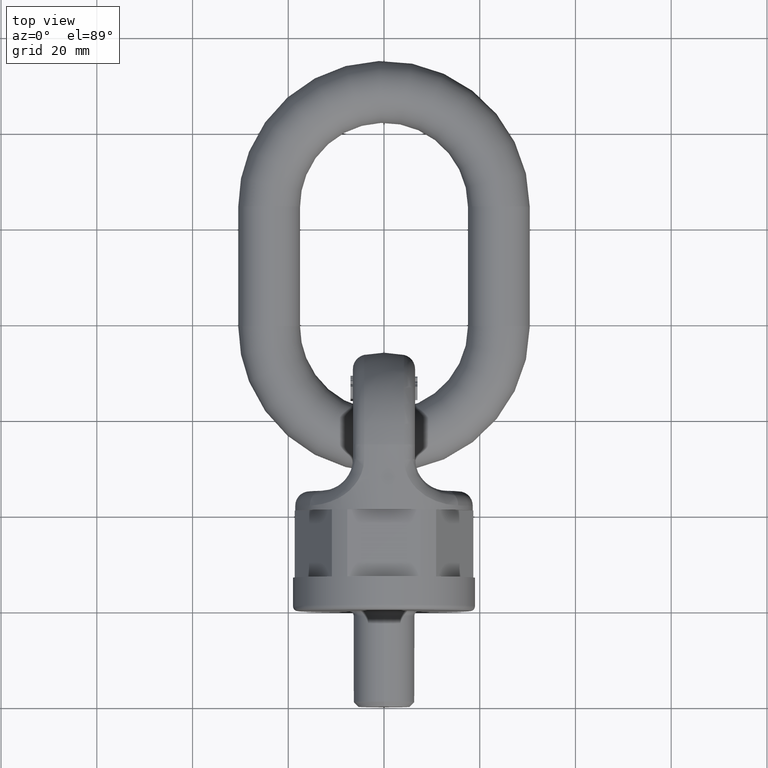
[diagram: clean part render]
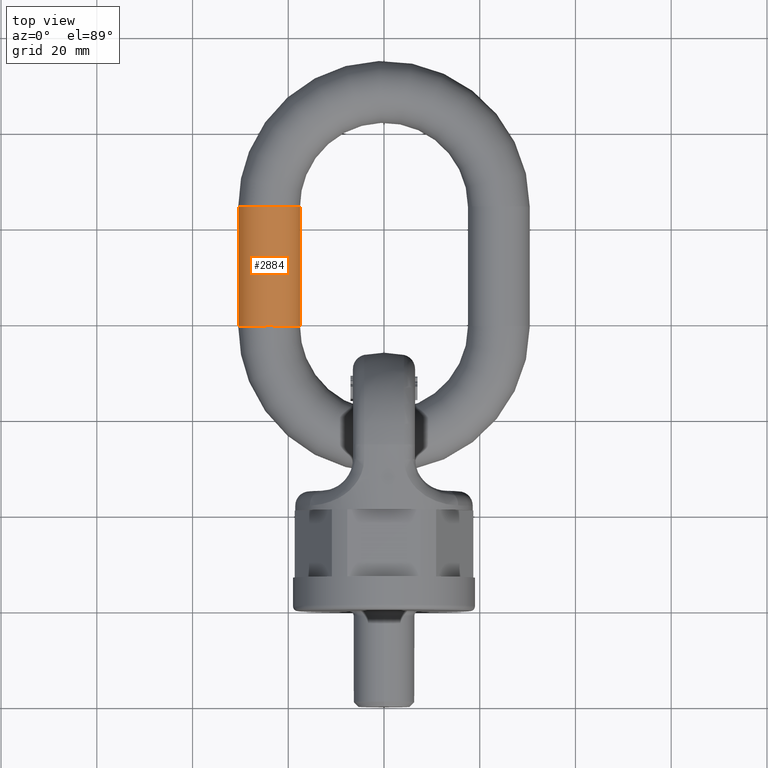
[diagram: same view with one face highlighted and labeled with its STEP entity id]
A machine part, top view. The second image highlights one B-rep face of the part: STEP entity #2884.
In plain terms, the highlighted cylindrical surface (bore or boss wall) has radius 6.5 mm, axis along (0, 1, 0).
Its self-contained STEP definition (entity closure, byte-faithful):
#2039=CYLINDRICAL_SURFACE('',#5803,6.5);
#2884=ADVANCED_FACE('',(#3057,#3058),#2039,.T.);
#3057=FACE_BOUND('',#3343,.T.);
#3058=FACE_BOUND('',#3344,.T.);
#3343=EDGE_LOOP('',(#4535));
#3344=EDGE_LOOP('',(#4536));
#4535=ORIENTED_EDGE('',*,*,#5533,.T.);
#4536=ORIENTED_EDGE('',*,*,#5534,.F.);
#4937=VERTEX_POINT('',#9726);
#4938=VERTEX_POINT('',#9728);
#5533=EDGE_CURVE('',#4937,#4937,#5599,.T.);
#5534=EDGE_CURVE('',#4938,#4938,#5600,.T.);
#5599=CIRCLE('',#5801,6.5);
#5600=CIRCLE('',#5802,6.5);
#5801=AXIS2_PLACEMENT_3D('',#9725,#6553,#6554);
#5802=AXIS2_PLACEMENT_3D('',#9727,#6555,#6556);
#5803=AXIS2_PLACEMENT_3D('',#9729,#6557,#6558);
#6553=DIRECTION('',(-1.01064309961486E-15,1.,0.));
#6554=DIRECTION('',(0.,0.,-1.));
#6555=DIRECTION('',(-1.01064309961486E-15,1.,0.));
#6556=DIRECTION('',(0.,0.,-1.));
#6557=DIRECTION('',(1.4210854715202E-16,1.,0.));
#6558=DIRECTION('',(-1.,0.,0.));
#9725=CARTESIAN_POINT('',(-24.,59.5,0.));
#9726=CARTESIAN_POINT('',(-24.,59.5,-6.5));
#9727=CARTESIAN_POINT('',(-24.,84.5,0.));
#9728=CARTESIAN_POINT('',(-24.,84.5,-6.5));
#9729=CARTESIAN_POINT('',(-24.,59.5,0.));